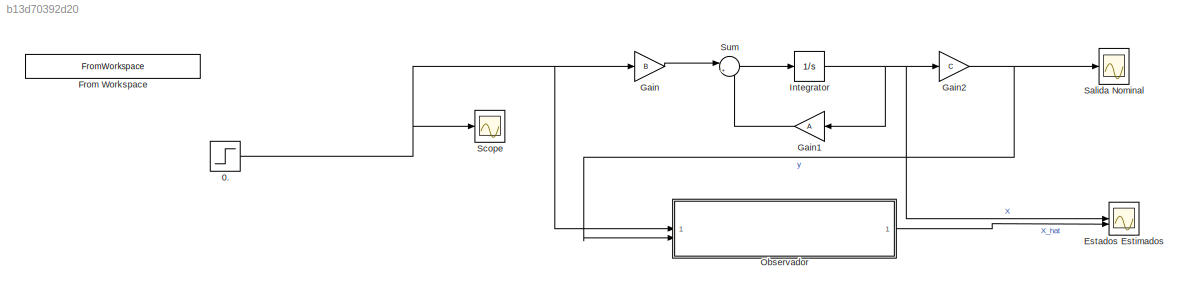
MODEL slx_b13d70392d20
KIND model
CONFIG AbsTol = auto
CONFIG EnableMultiTasking = off
CONFIG FixedStep = auto
CONFIG MaxStep = auto
CONFIG MinStep = auto
CONFIG RelTol = 1e-3
CONFIG SampleTimeConstraint = Unconstrained
CONFIG SolverName = VariableStepAuto
CONFIG StartTime = 0.0
CONFIG StopTime = 200
BLOCK [Step] 0.
  After = 0.3
  SampleTime = 0
BLOCK [Scope] Estados Estimados
  Floating = off
  NumInputPorts = 2
  ScopeSpecificationString = Simulink.scopes.TimeScopeBlockCfg('CurrentConfiguration', extmgr.ConfigurationSet(extmgr.Configuration('Core','General UI',true),extmgr.Configuration('Core','Source UI',true),extmgr.Configuration('Sources','WiredSimulink',true),extmgr.Configuration('Visuals','Time Domain',true,'SerializedDisplays',{struct('MinYLimReal','-1.26007','MaxYLimReal','1.53539','YLabelReal','','MinYLimMag','0.00000','MaxY...<+1396ch>
BLOCK [FromWorkspace] From Workspace
  SampleTime = 2.5e-3
  VariableName = DatosStepsVariables(:,1:2)
BLOCK [Gain] Gain
  Gain = B
  Multiplication = Matrix(K*u)
BLOCK [Gain] Gain1
  Gain = A
  Multiplication = Matrix(K*u)
  NameLocation = top
BLOCK [Gain] Gain2
  Gain = C
  Multiplication = Matrix(K*u)
BLOCK [Integrator] Integrator
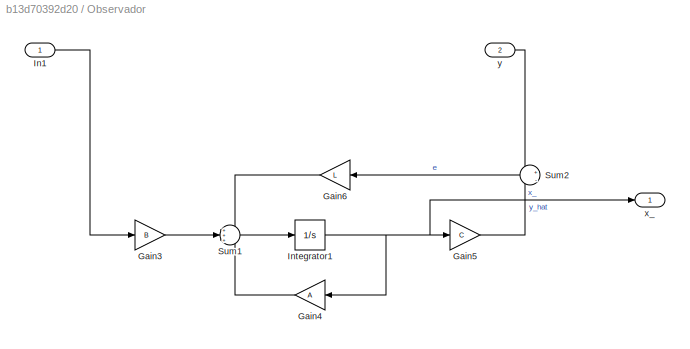
BLOCK [SubSystem] Observador
BLOCK [Gain] Observador/Gain3
  Gain = B
  Multiplication = Matrix(K*u)
BLOCK [Gain] Observador/Gain4
  Gain = A
  Multiplication = Matrix(K*u)
  NameLocation = top
BLOCK [Gain] Observador/Gain5
  Gain = C
BLOCK [Gain] Observador/Gain6
  Gain = L
  NameLocation = top
BLOCK [Inport] Observador/In1
BLOCK [Integrator] Observador/Integrator1
BLOCK [Sum] Observador/Sum1
  Inputs = +++
BLOCK [Sum] Observador/Sum2
  Inputs = +|-
  NameLocation = top
BLOCK [Outport] Observador/x_
BLOCK [Inport] Observador/y
  Port = 2
BLOCK [Scope] Salida Nominal
  Floating = off
  NumInputPorts = 1
  ScopeSpecificationString = Simulink.scopes.TimeScopeBlockCfg('CurrentConfiguration', extmgr.ConfigurationSet(extmgr.Configuration('Core','General UI',true),extmgr.Configuration('Core','Source UI',true),extmgr.Configuration('Sources','WiredSimulink',true,'DataLoggingVariableName','ScopeData1'),extmgr.Configuration('Visuals','Time Domain',true,'SerializedDisplays',{struct('MinYLimReal','-0.21124','MaxYLimReal','0.21124','YLab...<+1389ch>
BLOCK [Scope] Scope
  Floating = off
  NumInputPorts = 1
  ScopeSpecificationString = Simulink.scopes.TimeScopeBlockCfg('CurrentConfiguration', extmgr.ConfigurationSet(extmgr.Configuration('Core','General UI',true),extmgr.Configuration('Core','Source UI',true),extmgr.Configuration('Sources','WiredSimulink',true,'DataLoggingVariableName','ScopeData2'),extmgr.Configuration('Visuals','Time Domain',true,'SerializedDisplays',{struct('MinYLimReal','-0.0375','MaxYLimReal','0.3375','YLabel...<+1384ch>
BLOCK [Sum] Sum
  Inputs = |++
NET 0.:1 -> Gain:1, Observador:1, Scope:1
LINE Gain1:1 -> Sum:2
NET Gain2:1 -> Observador:2, Salida Nominal:1
LINE Gain:1 -> Sum:1
NET Integrator:1 -> Estados Estimados:1, Gain1:1, Gain2:1
LINE Observador/Gain3:1 -> Observador/Sum1:2
LINE Observador/Gain4:1 -> Observador/Sum1:3
LINE Observador/Gain5:1 -> Observador/Sum2:2
LINE Observador/Gain6:1 -> Observador/Sum1:1
LINE Observador/In1:1 -> Observador/Gain3:1
NET Observador/Integrator1:1 -> Observador/Gain4:1, Observador/Gain5:1, Observador/x_:1
LINE Observador/Sum1:1 -> Observador/Integrator1:1
LINE Observador/Sum2:1 -> Observador/Gain6:1
LINE Observador/y:1 -> Observador/Sum2:1
LINE Observador:1 -> Estados Estimados:2
LINE Sum:1 -> Integrator:1
note: NET lines group one-source signal fan-out (src -> all destinations, sorted); 1:1 wires keep LINE
